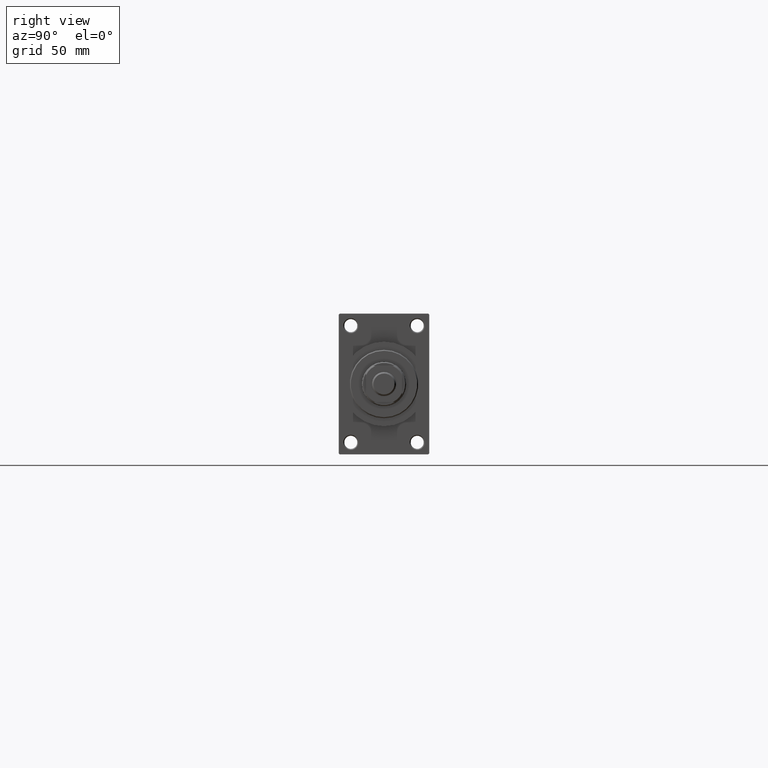
[diagram: clean part render]
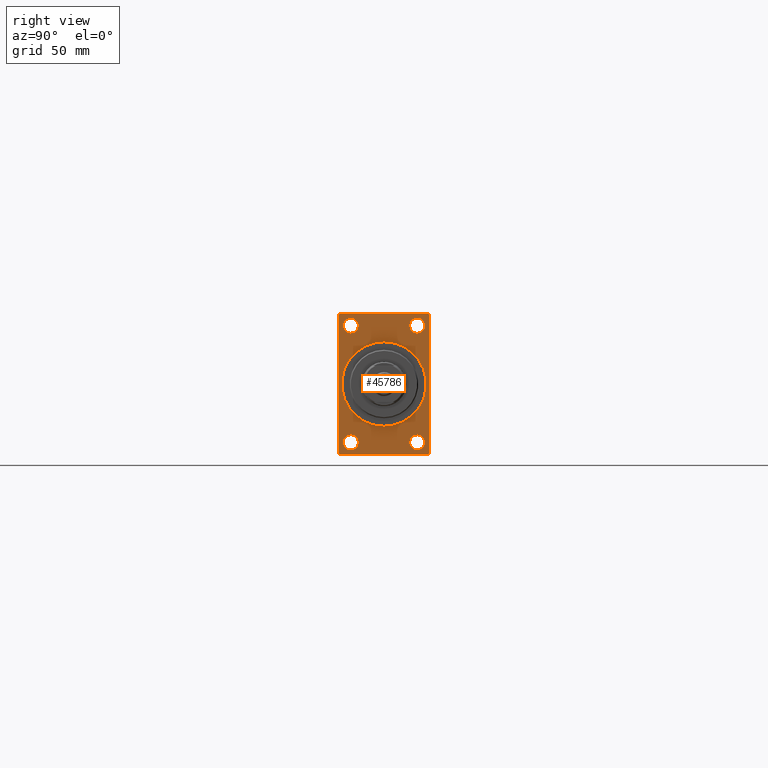
[diagram: same view with one face highlighted and labeled with its STEP entity id]
A machine part, right view. The second image highlights one B-rep face of the part: STEP entity #45786.
In plain terms, the highlighted planar face has unit normal (-1, 0, 0).
Its self-contained STEP definition (entity closure, byte-faithful):
#71 = EDGE_CURVE ( 'NONE', #6034, #41301, #39155, .T. ) ;
#362 = VERTEX_POINT ( 'NONE', #43895 ) ;
#1074 = EDGE_LOOP ( 'NONE', ( #45104, #5298 ) ) ;
#1105 = CARTESIAN_POINT ( 'NONE',  ( 293.0000000000000000, -16.50000000000000000, -32.75000000000005684 ) ) ;
#1236 = CARTESIAN_POINT ( 'NONE',  ( 293.0000000000000000, 22.49999999999999645, -35.00000000000000000 ) ) ;
#1540 = ORIENTED_EDGE ( 'NONE', *, *, #8819, .T. ) ;
#1611 = VERTEX_POINT ( 'NONE', #9035 ) ;
#1711 = DIRECTION ( 'NONE',  ( 0.000000000000000000, -1.000000000000000000, 0.000000000000000000 ) ) ;
#1905 = EDGE_CURVE ( 'NONE', #18006, #6409, #38352, .T. ) ;
#1907 = CIRCLE ( 'NONE', #28793, 3.750000000000055511 ) ;
#1969 = AXIS2_PLACEMENT_3D ( 'NONE', #47459, #36377, #14470 ) ;
#2513 = CARTESIAN_POINT ( 'NONE',  ( 293.0000000000000000, -16.50000000000000000, -28.99999999999999289 ) ) ;
#2667 = AXIS2_PLACEMENT_3D ( 'NONE', #39401, #40107, #29034 ) ;
#3467 = VECTOR ( 'NONE', #26447, 1000.000000000000000 ) ;
#3513 = ORIENTED_EDGE ( 'NONE', *, *, #8531, .T. ) ;
#3776 = AXIS2_PLACEMENT_3D ( 'NONE', #42124, #27912, #20690 ) ;
#4003 = DIRECTION ( 'NONE',  ( 0.000000000000000000, 0.000000000000000000, -1.000000000000000000 ) ) ;
#4246 = DIRECTION ( 'NONE',  ( 1.000000000000000000, 0.000000000000000000, 0.000000000000000000 ) ) ;
#5298 = ORIENTED_EDGE ( 'NONE', *, *, #22978, .T. ) ;
#5622 = DIRECTION ( 'NONE',  ( 0.000000000000000000, -1.000000000000000000, 0.000000000000000000 ) ) ;
#6034 = VERTEX_POINT ( 'NONE', #34978 ) ;
#6339 = FACE_BOUND ( 'NONE', #43112, .T. ) ;
#6342 = AXIS2_PLACEMENT_3D ( 'NONE', #42320, #20884, #16566 ) ;
#6409 = VERTEX_POINT ( 'NONE', #15672 ) ;
#7002 = EDGE_LOOP ( 'NONE', ( #20751, #42092 ) ) ;
#7243 = VECTOR ( 'NONE', #25845, 1000.000000000000000 ) ;
#7924 = LINE ( 'NONE', #40660, #3467 ) ;
#8472 = EDGE_CURVE ( 'NONE', #35309, #362, #32629, .T. ) ;
#8519 = ORIENTED_EDGE ( 'NONE', *, *, #43458, .T. ) ;
#8531 = EDGE_CURVE ( 'NONE', #41301, #27940, #11409, .T. ) ;
#8686 = LINE ( 'NONE', #1236, #29955 ) ;
#8819 = EDGE_CURVE ( 'NONE', #43468, #6034, #7924, .T. ) ;
#9035 = CARTESIAN_POINT ( 'NONE',  ( 293.0000000000000000, 22.00000000000002132, 35.00000000000000000 ) ) ;
#9068 = ORIENTED_EDGE ( 'NONE', *, *, #28799, .F. ) ;
#9299 = ORIENTED_EDGE ( 'NONE', *, *, #19577, .T. ) ;
#9661 = CIRCLE ( 'NONE', #1969, 3.750000000000055511 ) ;
#9942 = ORIENTED_EDGE ( 'NONE', *, *, #14280, .F. ) ;
#10020 = DIRECTION ( 'NONE',  ( -1.000000000000000000, -0.000000000000000000, -0.000000000000000000 ) ) ;
#10301 = EDGE_CURVE ( 'NONE', #27950, #37899, #9661, .T. ) ;
#10766 = CARTESIAN_POINT ( 'NONE',  ( 293.0000000000000000, -21.99999999999996092, 35.00000000000000000 ) ) ;
#10912 = DIRECTION ( 'NONE',  ( -1.000000000000000000, -0.000000000000000000, -0.000000000000000000 ) ) ;
#11169 = CARTESIAN_POINT ( 'NONE',  ( 293.0000000000000000, -22.00000000000002842, -35.00000000000000000 ) ) ;
#11409 = LINE ( 'NONE', #11169, #7243 ) ;
#11582 = EDGE_LOOP ( 'NONE', ( #38665, #3513, #9068, #16821, #24953, #8519, #18086, #1540 ) ) ;
#11635 = CARTESIAN_POINT ( 'NONE',  ( 293.0000000000000000, 22.49999999999999645, -34.50000000000000000 ) ) ;
#11665 = DIRECTION ( 'NONE',  ( 0.000000000000000000, 0.000000000000000000, 1.000000000000000000 ) ) ;
#12983 = CARTESIAN_POINT ( 'NONE',  ( 293.0000000000000000, 16.50000000000000000, -32.75000000000005684 ) ) ;
#13264 = VECTOR ( 'NONE', #42761, 1000.000000000000000 ) ;
#13556 = FACE_BOUND ( 'NONE', #7002, .T. ) ;
#13866 = DIRECTION ( 'NONE',  ( 0.000000000000000000, 0.000000000000000000, 1.000000000000000000 ) ) ;
#14280 = EDGE_CURVE ( 'NONE', #28808, #30868, #15933, .T. ) ;
#14470 = DIRECTION ( 'NONE',  ( 0.000000000000000000, 0.000000000000000000, 1.000000000000000000 ) ) ;
#15082 = VERTEX_POINT ( 'NONE', #32337 ) ;
#15272 = DIRECTION ( 'NONE',  ( -1.000000000000000000, -0.000000000000000000, -0.000000000000000000 ) ) ;
#15672 = CARTESIAN_POINT ( 'NONE',  ( 293.0000000000000000, 22.49999999999999645, -34.50000000000000000 ) ) ;
#15933 = CIRCLE ( 'NONE', #32048, 21.00000000000000000 ) ;
#16195 = LINE ( 'NONE', #30886, #42619 ) ;
#16566 = DIRECTION ( 'NONE',  ( 0.000000000000000000, 0.000000000000000000, 1.000000000000000000 ) ) ;
#16686 = CIRCLE ( 'NONE', #33624, 3.750000000000055511 ) ;
#16821 = ORIENTED_EDGE ( 'NONE', *, *, #1905, .T. ) ;
#16975 = EDGE_LOOP ( 'NONE', ( #9299, #26379 ) ) ;
#18006 = VERTEX_POINT ( 'NONE', #28854 ) ;
#18086 = ORIENTED_EDGE ( 'NONE', *, *, #39168, .T. ) ;
#18110 = CARTESIAN_POINT ( 'NONE',  ( 293.0000000000000000, 0.000000000000000000, 0.000000000000000000 ) ) ;
#19237 = VERTEX_POINT ( 'NONE', #12983 ) ;
#19577 = EDGE_CURVE ( 'NONE', #37899, #27950, #27506, .T. ) ;
#20052 = DIRECTION ( 'NONE',  ( 0.000000000000000000, 0.000000000000000000, -1.000000000000000000 ) ) ;
#20690 = DIRECTION ( 'NONE',  ( 0.000000000000000000, 0.000000000000000000, 1.000000000000000000 ) ) ;
#20751 = ORIENTED_EDGE ( 'NONE', *, *, #39896, .T. ) ;
#20884 = DIRECTION ( 'NONE',  ( -1.000000000000000000, -0.000000000000000000, -0.000000000000000000 ) ) ;
#21833 = LINE ( 'NONE', #29057, #47225 ) ;
#22619 = ORIENTED_EDGE ( 'NONE', *, *, #43742, .F. ) ;
#22716 = DIRECTION ( 'NONE',  ( 0.000000000000000000, 0.000000000000000000, 1.000000000000000000 ) ) ;
#22978 = EDGE_CURVE ( 'NONE', #362, #35309, #16686, .T. ) ;
#23461 = ORIENTED_EDGE ( 'NONE', *, *, #27880, .T. ) ;
#23600 = CARTESIAN_POINT ( 'NONE',  ( 293.0000000000000000, 2.571758278209441661E-15, -21.00000000000000000 ) ) ;
#24953 = ORIENTED_EDGE ( 'NONE', *, *, #44071, .F. ) ;
#25201 = DIRECTION ( 'NONE',  ( 0.000000000000000000, -0.7071067811865279218, 0.7071067811865671127 ) ) ;
#25331 = DIRECTION ( 'NONE',  ( -0.000000000000000000, 0.000000000000000000, 1.000000000000000000 ) ) ;
#25770 = AXIS2_PLACEMENT_3D ( 'NONE', #18110, #43158, #25331 ) ;
#25845 = DIRECTION ( 'NONE',  ( 0.000000000000000000, 0.7071067811865279218, -0.7071067811865671127 ) ) ;
#26379 = ORIENTED_EDGE ( 'NONE', *, *, #10301, .T. ) ;
#26447 = DIRECTION ( 'NONE',  ( -0.000000000000000000, -0.7071067811865672237, -0.7071067811865279218 ) ) ;
#27046 = LINE ( 'NONE', #42198, #44789 ) ;
#27506 = CIRCLE ( 'NONE', #33656, 3.750000000000055511 ) ;
#27880 = EDGE_CURVE ( 'NONE', #44571, #19237, #45289, .T. ) ;
#27912 = DIRECTION ( 'NONE',  ( -1.000000000000000000, -0.000000000000000000, -0.000000000000000000 ) ) ;
#27940 = VERTEX_POINT ( 'NONE', #46446 ) ;
#27950 = VERTEX_POINT ( 'NONE', #38521 ) ;
#28080 = CARTESIAN_POINT ( 'NONE',  ( 293.0000000000000000, -22.50000000000000355, 35.00000000000000000 ) ) ;
#28781 = CARTESIAN_POINT ( 'NONE',  ( 293.0000000000000000, 16.50000000000000000, 29.00000000000000355 ) ) ;
#28793 = AXIS2_PLACEMENT_3D ( 'NONE', #29724, #15272, #11665 ) ;
#28799 = EDGE_CURVE ( 'NONE', #18006, #27940, #8686, .T. ) ;
#28802 = CARTESIAN_POINT ( 'NONE',  ( 293.0000000000000000, -22.50000000000000355, -34.50000000000000000 ) ) ;
#28808 = VERTEX_POINT ( 'NONE', #23600 ) ;
#28854 = CARTESIAN_POINT ( 'NONE',  ( 293.0000000000000000, 21.99999999999996803, -35.00000000000000000 ) ) ;
#29034 = DIRECTION ( 'NONE',  ( 0.000000000000000000, 0.000000000000000000, -1.000000000000000000 ) ) ;
#29057 = CARTESIAN_POINT ( 'NONE',  ( 293.0000000000000000, 22.00000000000002132, 35.00000000000000000 ) ) ;
#29220 = DIRECTION ( 'NONE',  ( -1.000000000000000000, -0.000000000000000000, -0.000000000000000000 ) ) ;
#29724 = CARTESIAN_POINT ( 'NONE',  ( 293.0000000000000000, 16.50000000000000000, -28.99999999999999289 ) ) ;
#29955 = VECTOR ( 'NONE', #1711, 1000.000000000000000 ) ;
#30320 = AXIS2_PLACEMENT_3D ( 'NONE', #28781, #10020, #43469 ) ;
#30868 = VERTEX_POINT ( 'NONE', #36545 ) ;
#30886 = CARTESIAN_POINT ( 'NONE',  ( 293.0000000000000000, 22.49999999999999645, 35.00000000000000000 ) ) ;
#31847 = FACE_BOUND ( 'NONE', #1074, .T. ) ;
#31879 = VERTEX_POINT ( 'NONE', #45437 ) ;
#32048 = AXIS2_PLACEMENT_3D ( 'NONE', #33595, #4246, #4003 ) ;
#32337 = CARTESIAN_POINT ( 'NONE',  ( 293.0000000000000000, 22.49999999999999645, 34.50000000000000000 ) ) ;
#32535 = VECTOR ( 'NONE', #37869, 1000.000000000000000 ) ;
#32629 = CIRCLE ( 'NONE', #36478, 3.750000000000055511 ) ;
#33595 = CARTESIAN_POINT ( 'NONE',  ( 293.0000000000000000, 0.000000000000000000, 0.000000000000000000 ) ) ;
#33624 = AXIS2_PLACEMENT_3D ( 'NONE', #34116, #38216, #13866 ) ;
#33656 = AXIS2_PLACEMENT_3D ( 'NONE', #2513, #10912, #47506 ) ;
#34116 = CARTESIAN_POINT ( 'NONE',  ( 293.0000000000000000, -16.50000000000000000, 29.00000000000000711 ) ) ;
#34294 = VERTEX_POINT ( 'NONE', #45724 ) ;
#34978 = CARTESIAN_POINT ( 'NONE',  ( 293.0000000000000000, -22.50000000000000355, 34.50000000000000000 ) ) ;
#35309 = VERTEX_POINT ( 'NONE', #35746 ) ;
#35536 = CIRCLE ( 'NONE', #6342, 3.750000000000058620 ) ;
#35746 = CARTESIAN_POINT ( 'NONE',  ( 293.0000000000000000, -16.50000000000000000, 25.24999999999995381 ) ) ;
#36377 = DIRECTION ( 'NONE',  ( -1.000000000000000000, -0.000000000000000000, -0.000000000000000000 ) ) ;
#36478 = AXIS2_PLACEMENT_3D ( 'NONE', #40293, #29220, #22716 ) ;
#36545 = CARTESIAN_POINT ( 'NONE',  ( 293.0000000000000000, 0.000000000000000000, 21.00000000000000000 ) ) ;
#36588 = EDGE_LOOP ( 'NONE', ( #40335, #23461 ) ) ;
#37869 = DIRECTION ( 'NONE',  ( -0.000000000000000000, 0.7071067811865672237, 0.7071067811865279218 ) ) ;
#37899 = VERTEX_POINT ( 'NONE', #1105 ) ;
#38216 = DIRECTION ( 'NONE',  ( -1.000000000000000000, -0.000000000000000000, -0.000000000000000000 ) ) ;
#38352 = LINE ( 'NONE', #11635, #32535 ) ;
#38521 = CARTESIAN_POINT ( 'NONE',  ( 293.0000000000000000, -16.50000000000000000, -25.24999999999993605 ) ) ;
#38665 = ORIENTED_EDGE ( 'NONE', *, *, #71, .T. ) ;
#38772 = CIRCLE ( 'NONE', #30320, 3.750000000000058620 ) ;
#39155 = LINE ( 'NONE', #28080, #13264 ) ;
#39168 = EDGE_CURVE ( 'NONE', #1611, #43468, #27046, .T. ) ;
#39310 = FACE_BOUND ( 'NONE', #36588, .T. ) ;
#39401 = CARTESIAN_POINT ( 'NONE',  ( 293.0000000000000000, 0.000000000000000000, 0.000000000000000000 ) ) ;
#39896 = EDGE_CURVE ( 'NONE', #34294, #31879, #35536, .T. ) ;
#40107 = DIRECTION ( 'NONE',  ( 1.000000000000000000, 0.000000000000000000, 0.000000000000000000 ) ) ;
#40293 = CARTESIAN_POINT ( 'NONE',  ( 293.0000000000000000, -16.50000000000000000, 29.00000000000000711 ) ) ;
#40335 = ORIENTED_EDGE ( 'NONE', *, *, #45650, .T. ) ;
#40596 = CARTESIAN_POINT ( 'NONE',  ( 293.0000000000000000, 16.50000000000000000, -25.24999999999993605 ) ) ;
#40660 = CARTESIAN_POINT ( 'NONE',  ( 293.0000000000000000, -22.50000000000000355, 34.50000000000000000 ) ) ;
#41301 = VERTEX_POINT ( 'NONE', #28802 ) ;
#42092 = ORIENTED_EDGE ( 'NONE', *, *, #47434, .T. ) ;
#42124 = CARTESIAN_POINT ( 'NONE',  ( 293.0000000000000000, 16.50000000000000000, -28.99999999999999289 ) ) ;
#42198 = CARTESIAN_POINT ( 'NONE',  ( 293.0000000000000000, 22.49999999999999645, 35.00000000000000000 ) ) ;
#42320 = CARTESIAN_POINT ( 'NONE',  ( 293.0000000000000000, 16.50000000000000000, 29.00000000000000355 ) ) ;
#42619 = VECTOR ( 'NONE', #20052, 1000.000000000000000 ) ;
#42761 = DIRECTION ( 'NONE',  ( 0.000000000000000000, 0.000000000000000000, -1.000000000000000000 ) ) ;
#43112 = EDGE_LOOP ( 'NONE', ( #22619, #9942 ) ) ;
#43158 = DIRECTION ( 'NONE',  ( -1.000000000000000000, 0.000000000000000000, -0.000000000000000000 ) ) ;
#43458 = EDGE_CURVE ( 'NONE', #15082, #1611, #21833, .T. ) ;
#43468 = VERTEX_POINT ( 'NONE', #10766 ) ;
#43469 = DIRECTION ( 'NONE',  ( 0.000000000000000000, 0.000000000000000000, 1.000000000000000000 ) ) ;
#43742 = EDGE_CURVE ( 'NONE', #30868, #28808, #46471, .T. ) ;
#43895 = CARTESIAN_POINT ( 'NONE',  ( 293.0000000000000000, -16.50000000000000000, 32.75000000000006395 ) ) ;
#44071 = EDGE_CURVE ( 'NONE', #15082, #6409, #16195, .T. ) ;
#44571 = VERTEX_POINT ( 'NONE', #40596 ) ;
#44789 = VECTOR ( 'NONE', #5622, 1000.000000000000000 ) ;
#45104 = ORIENTED_EDGE ( 'NONE', *, *, #8472, .T. ) ;
#45289 = CIRCLE ( 'NONE', #3776, 3.750000000000055511 ) ;
#45437 = CARTESIAN_POINT ( 'NONE',  ( 293.0000000000000000, 16.50000000000000000, 32.75000000000006395 ) ) ;
#45650 = EDGE_CURVE ( 'NONE', #19237, #44571, #1907, .T. ) ;
#45724 = CARTESIAN_POINT ( 'NONE',  ( 293.0000000000000000, 16.50000000000000000, 25.24999999999994671 ) ) ;
#45786 = ADVANCED_FACE ( 'NONE', ( #31847, #46541, #39310, #13556, #6339, #46775 ), #47487, .F. ) ;
#46446 = CARTESIAN_POINT ( 'NONE',  ( 293.0000000000000000, -22.00000000000001776, -35.00000000000000000 ) ) ;
#46471 = CIRCLE ( 'NONE', #2667, 21.00000000000000000 ) ;
#46541 = FACE_BOUND ( 'NONE', #16975, .T. ) ;
#46775 = FACE_OUTER_BOUND ( 'NONE', #11582, .T. ) ;
#47225 = VECTOR ( 'NONE', #25201, 1000.000000000000000 ) ;
#47434 = EDGE_CURVE ( 'NONE', #31879, #34294, #38772, .T. ) ;
#47459 = CARTESIAN_POINT ( 'NONE',  ( 293.0000000000000000, -16.50000000000000000, -28.99999999999999289 ) ) ;
#47487 = PLANE ( 'NONE',  #25770 ) ;
#47506 = DIRECTION ( 'NONE',  ( 0.000000000000000000, 0.000000000000000000, 1.000000000000000000 ) ) ;